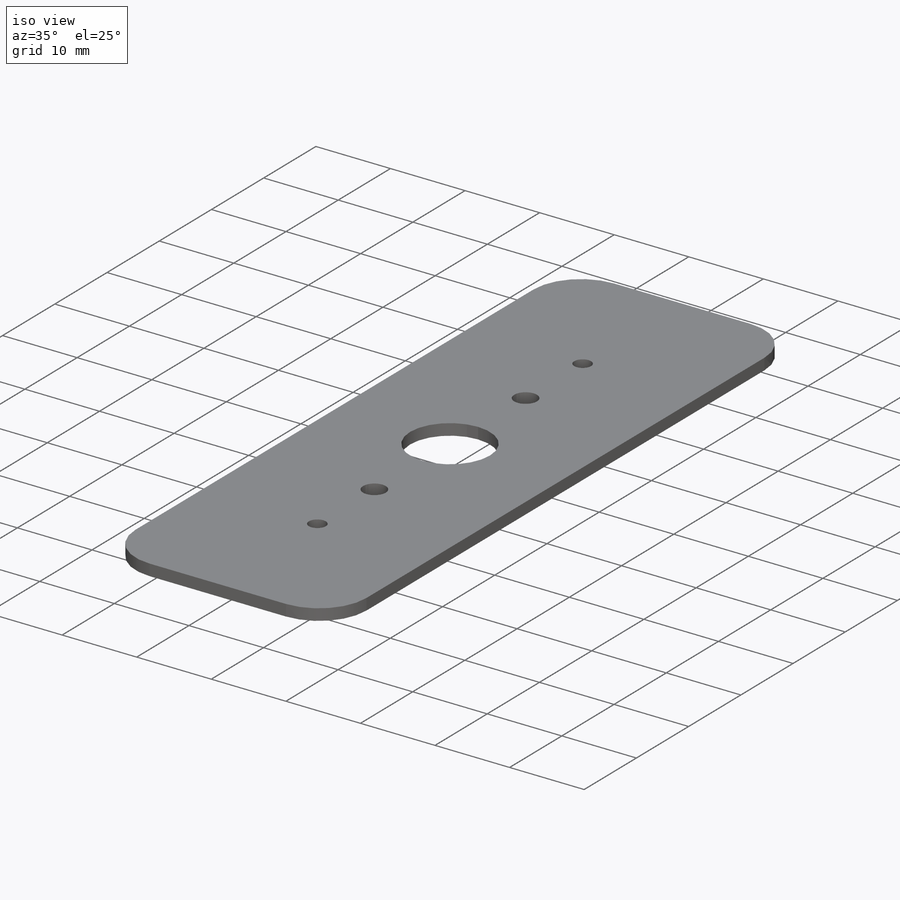
[diagram: iso view]
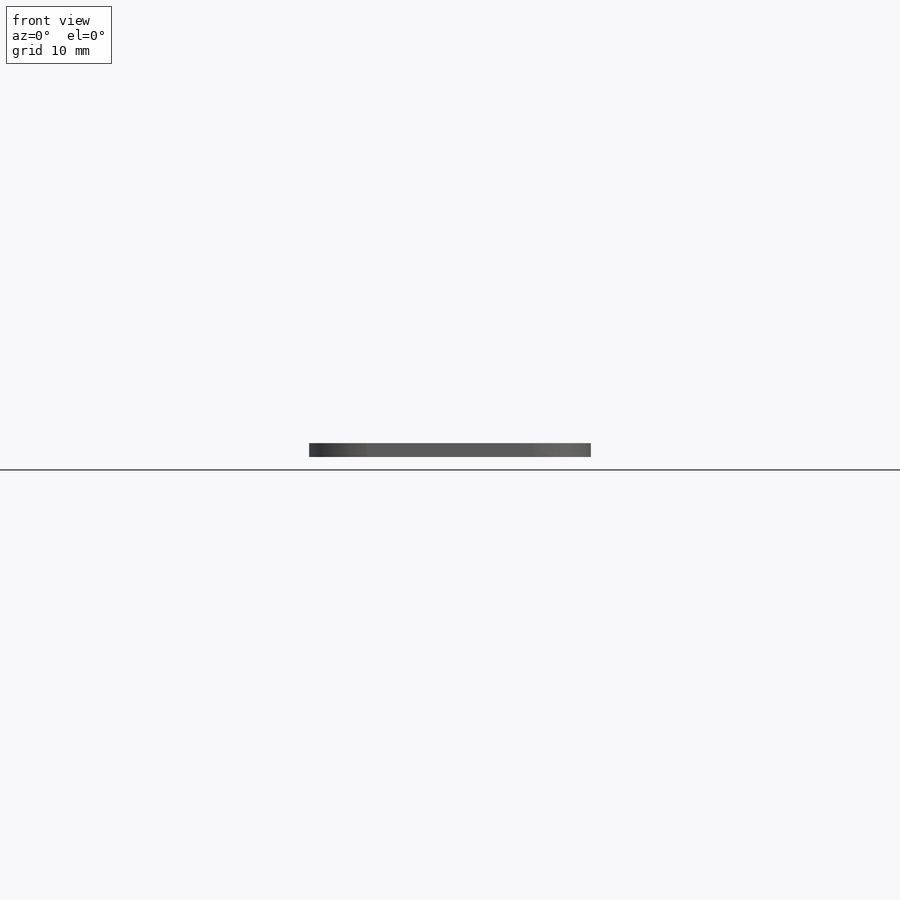
[diagram: front view]
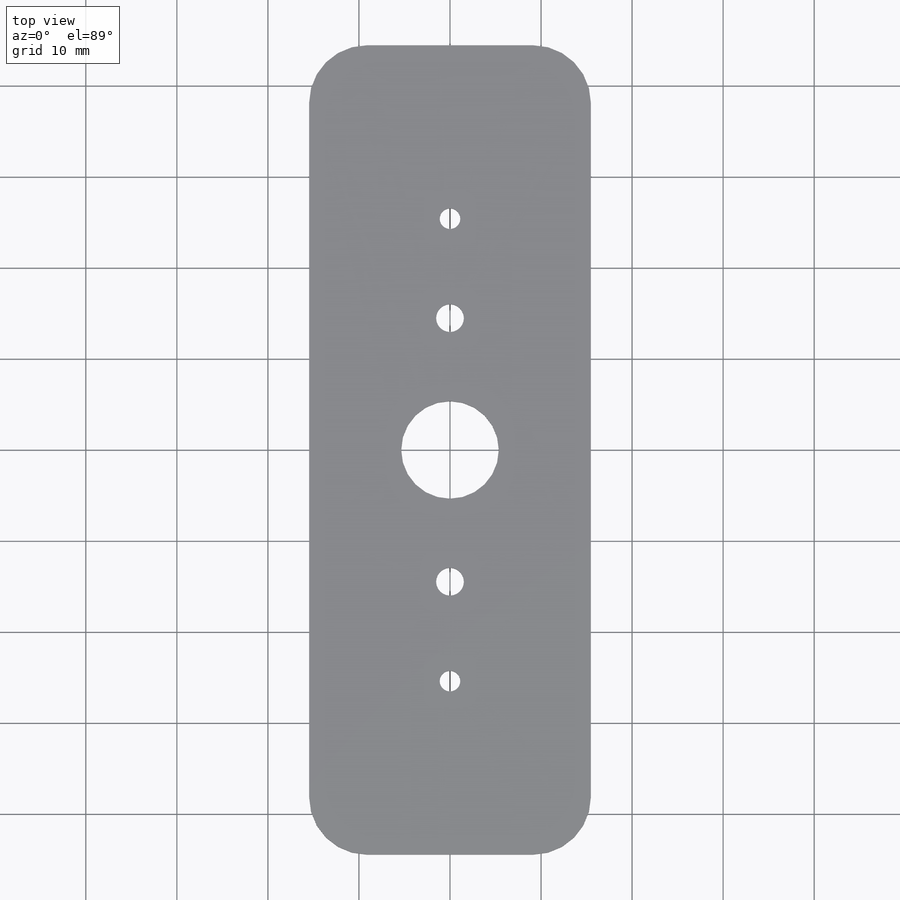
[diagram: top view]
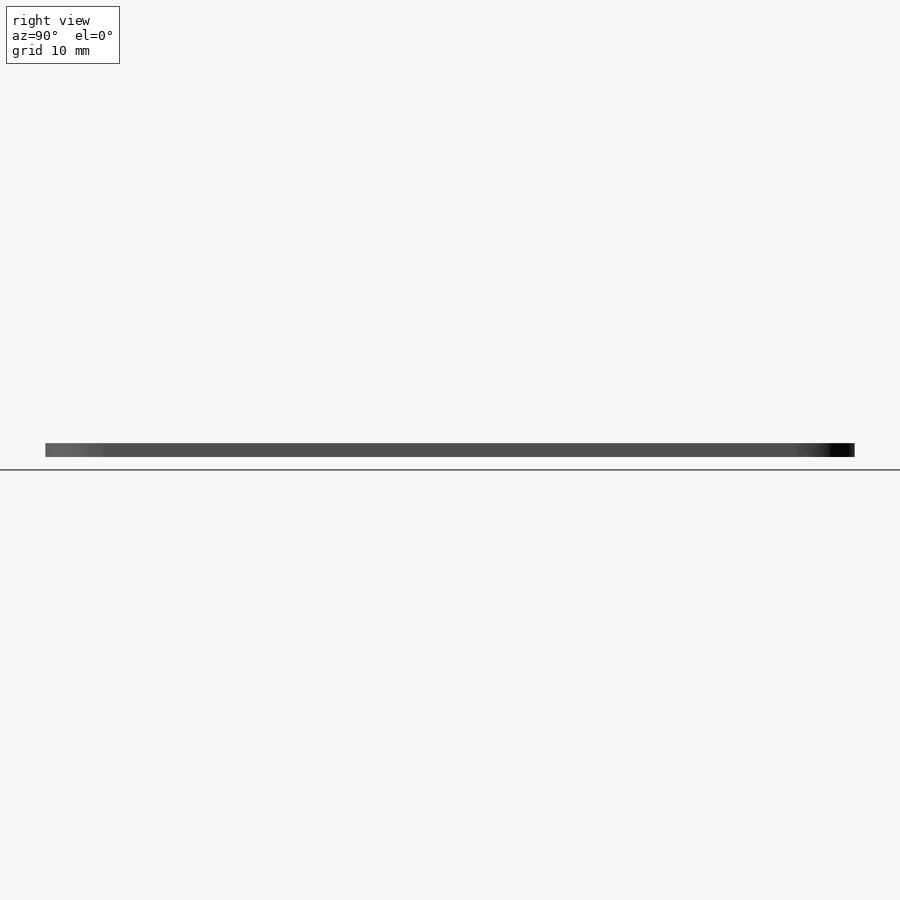
[diagram: right view]
SOLIDWORKS PART (.sldprt)
format: sldprt  version: not decoded by parser v0  size: 253,952 bytes
history: native  units: mm
features: sketch x6, hole x2, material x1, extrude x1, fillet x1, cut_extrude x1, thread x1 (+11 scaffold rows collapsed)
feature tree (24):
  scaffold x11  (default folders/planes/origin — collapsed)
  material  "Acrylic (Medium-high impact)"
  sketch  "Sketch1"  dims[c1.D2=12.7mm c1.D1=20.0mm c2.D2=~78.87609mm c2.D1=88.9mm c3.D2=~30.95625mm]
  extrude  "Boss-Extrude1"  Depth=1.524mm
  fillet  "Fillet1"  Radius=6.35mm
  sketch  "Sketch6"  dims[D1=3.048mm D2=14.478mm]
  cut_extrude  "Cut-Extrude1"  [1 undecoded]
  hole  "#4-40 Tapped Hole1"  Diameter=2.2606mm Depth=1.524mm
  sketch  "Sketch5"  dims[D1=50.8mm]
  sketch  "Sketch4"  dims[hole-wizard template sketch: 60 standard entries collapsed; hole parameters kept: c18.Thru Tap Drill Depth=1.524mm]
  hole  "1/2-13 Tapped Hole1"  Diameter=10.71626mm Depth=1.524mm
  sketch  "Sketch8"
  sketch  "Sketch7"  dims[hole-wizard template sketch: 60 standard entries collapsed; hole parameters kept: c18.Thru Tap Drill Depth=1.524mm]
  thread  "Hole Thread1"  Diameter=12.7mm  [1 undecoded]
decode coverage: 10 of 12 modeling features carry decoded parameters
note: ~ marks probable driven/reference dimensions
note: 2 parameter values undecoded
note: suppression state not decoded; provenance and decode notes live in map.json
